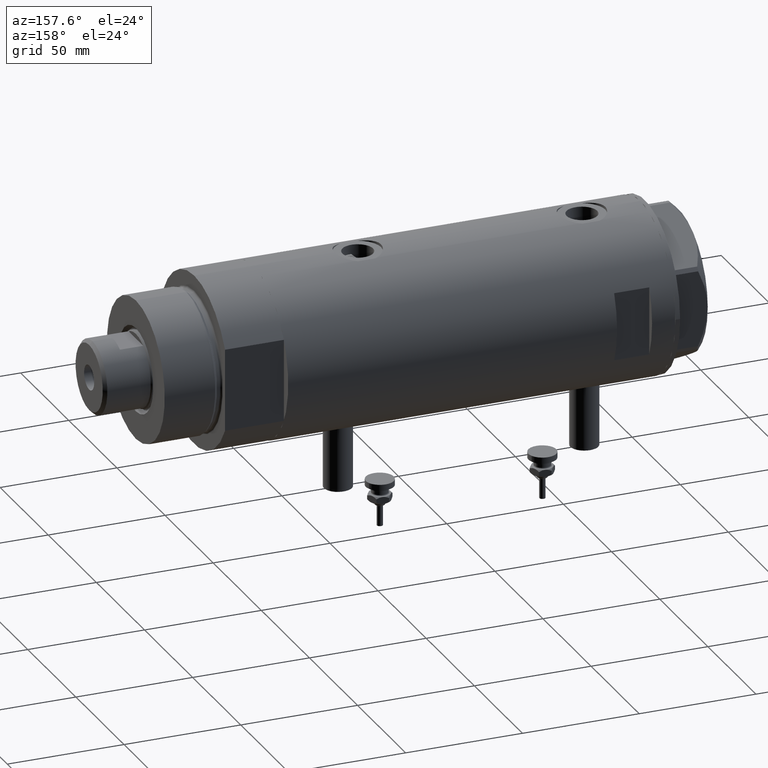
[diagram: clean part render]
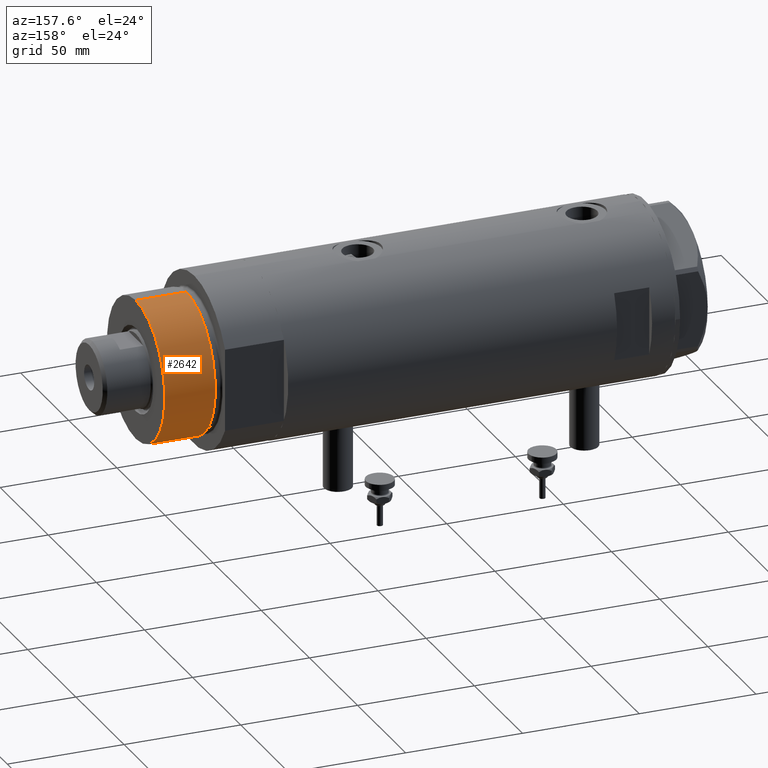
[diagram: same view with one face highlighted and labeled with its STEP entity id]
A machine part, auxiliary view. The second image highlights one B-rep face of the part: STEP entity #2642.
In plain terms, the highlighted cylindrical surface (partial cylindrical patch) has radius 30 mm, axis along (-1, -0, 0).
Its self-contained STEP definition (entity closure, byte-faithful):
#32 = VERTEX_POINT ( 'NONE', #4173 ) ;
#34 = DIRECTION ( 'NONE',  ( 0.000000000000000000, 0.000000000000000000, 1.000000000000000000 ) ) ;
#282 = ORIENTED_EDGE ( 'NONE', *, *, #4739, .F. ) ;
#339 = CARTESIAN_POINT ( 'NONE',  ( 0.000000000000000000, 0.000000000000000000, 50.19999999999999574 ) ) ;
#546 = CARTESIAN_POINT ( 'NONE',  ( 0.000000000000000000, 0.000000000000000000, 28.57384048104054486 ) ) ;
#759 = EDGE_CURVE ( 'NONE', #3280, #32, #4231, .T. ) ;
#1120 = EDGE_CURVE ( 'NONE', #3400, #3394, #1135, .T. ) ;
#1135 = CIRCLE ( 'NONE', #5450, 30.00000000000000000 ) ;
#1513 = ORIENTED_EDGE ( 'NONE', *, *, #3411, .T. ) ;
#1533 = CARTESIAN_POINT ( 'NONE',  ( 30.00000000000000000, 3.673940397442058389E-15, 28.57384048104054486 ) ) ;
#1678 = LINE ( 'NONE', #5429, #5485 ) ;
#1687 = DIRECTION ( 'NONE',  ( -1.000000000000000000, 0.000000000000000000, 0.000000000000000000 ) ) ;
#1839 = DIRECTION ( 'NONE',  ( 1.000000000000000000, 0.000000000000000000, 0.000000000000000000 ) ) ;
#2290 = DIRECTION ( 'NONE',  ( 1.000000000000000000, 0.000000000000000000, 0.000000000000000000 ) ) ;
#2311 = CARTESIAN_POINT ( 'NONE',  ( 30.00000000000000000, 3.673940397442058389E-15, 50.19999999999999574 ) ) ;
#2642 = ADVANCED_FACE ( 'NONE', ( #5799 ), #3527, .T. ) ;
#2768 = ORIENTED_EDGE ( 'NONE', *, *, #759, .F. ) ;
#3280 = VERTEX_POINT ( 'NONE', #2311 ) ;
#3304 = EDGE_LOOP ( 'NONE', ( #2768, #1513, #3967, #282 ) ) ;
#3394 = VERTEX_POINT ( 'NONE', #4305 ) ;
#3400 = VERTEX_POINT ( 'NONE', #1533 ) ;
#3411 = EDGE_CURVE ( 'NONE', #3280, #3400, #5694, .T. ) ;
#3418 = CARTESIAN_POINT ( 'NONE',  ( 30.00000000000000000, 3.673940397442058389E-15, 50.19999999999999574 ) ) ;
#3527 = CYLINDRICAL_SURFACE ( 'NONE', #4039, 30.00000000000000000 ) ;
#3967 = ORIENTED_EDGE ( 'NONE', *, *, #1120, .T. ) ;
#4039 = AXIS2_PLACEMENT_3D ( 'NONE', #339, #5349, #1687 ) ;
#4173 = CARTESIAN_POINT ( 'NONE',  ( -30.00000000000000000, 0.000000000000000000, 50.19999999999999574 ) ) ;
#4231 = CIRCLE ( 'NONE', #5246, 30.00000000000000000 ) ;
#4285 = DIRECTION ( 'NONE',  ( -0.000000000000000000, -0.000000000000000000, -1.000000000000000000 ) ) ;
#4305 = CARTESIAN_POINT ( 'NONE',  ( -30.00000000000000000, 0.000000000000000000, 28.57384048104054486 ) ) ;
#4577 = CARTESIAN_POINT ( 'NONE',  ( 0.000000000000000000, 0.000000000000000000, 50.19999999999999574 ) ) ;
#4739 = EDGE_CURVE ( 'NONE', #32, #3394, #1678, .T. ) ;
#4988 = VECTOR ( 'NONE', #4285, 1000.000000000000000 ) ;
#5059 = DIRECTION ( 'NONE',  ( -0.000000000000000000, -0.000000000000000000, 1.000000000000000000 ) ) ;
#5246 = AXIS2_PLACEMENT_3D ( 'NONE', #4577, #34, #2290 ) ;
#5349 = DIRECTION ( 'NONE',  ( -0.000000000000000000, -0.000000000000000000, -1.000000000000000000 ) ) ;
#5365 = DIRECTION ( 'NONE',  ( -0.000000000000000000, -0.000000000000000000, -1.000000000000000000 ) ) ;
#5429 = CARTESIAN_POINT ( 'NONE',  ( -30.00000000000000000, 0.000000000000000000, 50.19999999999999574 ) ) ;
#5450 = AXIS2_PLACEMENT_3D ( 'NONE', #546, #5059, #1839 ) ;
#5485 = VECTOR ( 'NONE', #5365, 1000.000000000000000 ) ;
#5694 = LINE ( 'NONE', #3418, #4988 ) ;
#5799 = FACE_OUTER_BOUND ( 'NONE', #3304, .T. ) ;